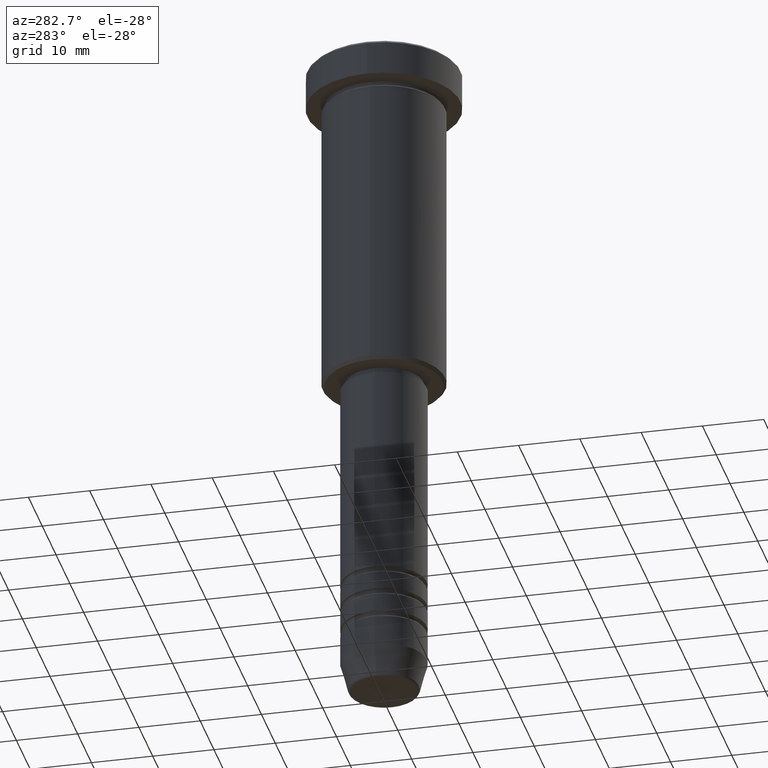
[diagram: clean part render]
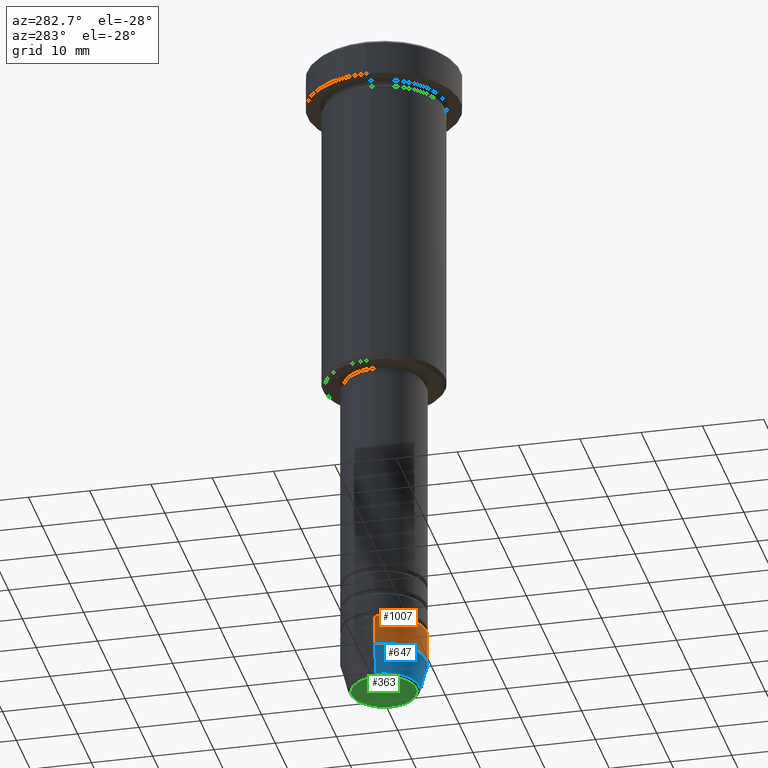
[diagram: same view with three faces highlighted in distinct colors, each labeled with its STEP entity id]
A machine part, auxiliary view with three faces highlighted in distinct colors.
Their STEP definitions:

[orange] entity #1007 — the highlighted cylindrical surface (partial cylindrical patch) has radius 7 mm, axis along (-0, -0, 1).
#11 = DIRECTION ( 'NONE',  ( 1.000000000000000000, 0.000000000000000000, 0.000000000000000000 ) ) ;
#18 = CARTESIAN_POINT ( 'NONE',  ( -7.000000000000000000, 8.572527594031473190E-16, -106.0000000000000142 ) ) ;
#23 = CYLINDRICAL_SURFACE ( 'NONE', #551, 7.000000000000000000 ) ;
#29 = VECTOR ( 'NONE', #713, 1000.000000000000000 ) ;
#76 = EDGE_CURVE ( 'NONE', #303, #154, #670, .T. ) ;
#98 = CARTESIAN_POINT ( 'NONE',  ( 0.000000000000000000, 0.000000000000000000, -101.0000000000000000 ) ) ;
#101 = VECTOR ( 'NONE', #1079, 1000.000000000000000 ) ;
#154 = VERTEX_POINT ( 'NONE', #1145 ) ;
#302 = DIRECTION ( 'NONE',  ( 1.000000000000000000, 0.000000000000000000, 0.000000000000000000 ) ) ;
#303 = VERTEX_POINT ( 'NONE', #470 ) ;
#350 = CARTESIAN_POINT ( 'NONE',  ( -7.000000000000000000, 8.572527594031473190E-16, 0.000000000000000000 ) ) ;
#378 = FACE_OUTER_BOUND ( 'NONE', #624, .T. ) ;
#380 = DIRECTION ( 'NONE',  ( 1.000000000000000000, 0.000000000000000000, 0.000000000000000000 ) ) ;
#399 = EDGE_CURVE ( 'NONE', #1071, #435, #520, .T. ) ;
#435 = VERTEX_POINT ( 'NONE', #503 ) ;
#443 = ORIENTED_EDGE ( 'NONE', *, *, #76, .F. ) ;
#470 = CARTESIAN_POINT ( 'NONE',  ( -7.000000000000000000, 8.572527594031473190E-16, -101.0000000000000000 ) ) ;
#494 = CARTESIAN_POINT ( 'NONE',  ( 0.000000000000000000, 0.000000000000000000, -106.0000000000000142 ) ) ;
#503 = CARTESIAN_POINT ( 'NONE',  ( 7.000000000000000000, 0.000000000000000000, -106.0000000000000142 ) ) ;
#520 = CIRCLE ( 'NONE', #825, 7.000000000000000000 ) ;
#551 = AXIS2_PLACEMENT_3D ( 'NONE', #751, #759, #302 ) ;
#624 = EDGE_LOOP ( 'NONE', ( #1078, #947, #1060, #443 ) ) ;
#670 = CIRCLE ( 'NONE', #1118, 7.000000000000000000 ) ;
#681 = DIRECTION ( 'NONE',  ( -0.000000000000000000, -0.000000000000000000, 1.000000000000000000 ) ) ;
#713 = DIRECTION ( 'NONE',  ( -0.000000000000000000, -0.000000000000000000, 1.000000000000000000 ) ) ;
#750 = EDGE_CURVE ( 'NONE', #1071, #303, #988, .T. ) ;
#751 = CARTESIAN_POINT ( 'NONE',  ( 0.000000000000000000, 0.000000000000000000, 0.000000000000000000 ) ) ;
#759 = DIRECTION ( 'NONE',  ( -0.000000000000000000, -0.000000000000000000, 1.000000000000000000 ) ) ;
#825 = AXIS2_PLACEMENT_3D ( 'NONE', #494, #681, #11 ) ;
#870 = CARTESIAN_POINT ( 'NONE',  ( 7.000000000000000000, 0.000000000000000000, 0.000000000000000000 ) ) ;
#947 = ORIENTED_EDGE ( 'NONE', *, *, #399, .T. ) ;
#988 = LINE ( 'NONE', #350, #101 ) ;
#1007 = ADVANCED_FACE ( 'NONE', ( #378 ), #23, .T. ) ;
#1011 = DIRECTION ( 'NONE',  ( -0.000000000000000000, -0.000000000000000000, 1.000000000000000000 ) ) ;
#1060 = ORIENTED_EDGE ( 'NONE', *, *, #1164, .T. ) ;
#1071 = VERTEX_POINT ( 'NONE', #18 ) ;
#1078 = ORIENTED_EDGE ( 'NONE', *, *, #750, .F. ) ;
#1079 = DIRECTION ( 'NONE',  ( -0.000000000000000000, -0.000000000000000000, 1.000000000000000000 ) ) ;
#1118 = AXIS2_PLACEMENT_3D ( 'NONE', #98, #1011, #380 ) ;
#1145 = CARTESIAN_POINT ( 'NONE',  ( 7.000000000000000000, 0.000000000000000000, -101.0000000000000000 ) ) ;
#1153 = LINE ( 'NONE', #870, #29 ) ;
#1164 = EDGE_CURVE ( 'NONE', #435, #154, #1153, .T. ) ;

[blue] entity #647 — the highlighted conical surface has half-angle 15 deg.
#11 = DIRECTION ( 'NONE',  ( 1.000000000000000000, 0.000000000000000000, 0.000000000000000000 ) ) ;
#18 = CARTESIAN_POINT ( 'NONE',  ( -7.000000000000000000, 8.572527594031473190E-16, -106.0000000000000142 ) ) ;
#19 = EDGE_CURVE ( 'NONE', #754, #435, #389, .T. ) ;
#26 = VECTOR ( 'NONE', #1017, 1000.000000000000000 ) ;
#63 = ORIENTED_EDGE ( 'NONE', *, *, #399, .F. ) ;
#123 = AXIS2_PLACEMENT_3D ( 'NONE', #890, #437, #235 ) ;
#164 = CARTESIAN_POINT ( 'NONE',  ( 5.759553456999433330, 0.000000000000000000, -110.6294095225512848 ) ) ;
#235 = DIRECTION ( 'NONE',  ( 1.000000000000000000, 0.000000000000000000, 0.000000000000000000 ) ) ;
#262 = CARTESIAN_POINT ( 'NONE',  ( 0.000000000000000000, 0.000000000000000000, -110.6294095225512848 ) ) ;
#318 = VECTOR ( 'NONE', #536, 1000.000000000000000 ) ;
#347 = CARTESIAN_POINT ( 'NONE',  ( -7.000000000000000000, 8.572527594031473190E-16, -106.0000000000000142 ) ) ;
#389 = LINE ( 'NONE', #760, #26 ) ;
#399 = EDGE_CURVE ( 'NONE', #1071, #435, #520, .T. ) ;
#426 = FACE_OUTER_BOUND ( 'NONE', #1003, .T. ) ;
#435 = VERTEX_POINT ( 'NONE', #503 ) ;
#437 = DIRECTION ( 'NONE',  ( -0.000000000000000000, -0.000000000000000000, 1.000000000000000000 ) ) ;
#454 = DIRECTION ( 'NONE',  ( -0.000000000000000000, -0.000000000000000000, 1.000000000000000000 ) ) ;
#494 = CARTESIAN_POINT ( 'NONE',  ( 0.000000000000000000, 0.000000000000000000, -106.0000000000000142 ) ) ;
#503 = CARTESIAN_POINT ( 'NONE',  ( 7.000000000000000000, 0.000000000000000000, -106.0000000000000142 ) ) ;
#520 = CIRCLE ( 'NONE', #825, 7.000000000000000000 ) ;
#536 = DIRECTION ( 'NONE',  ( -0.2588190451025213501, 3.169619151431772337E-17, 0.9659258262890680902 ) ) ;
#632 = CIRCLE ( 'NONE', #768, 5.759553456999433330 ) ;
#647 = ADVANCED_FACE ( 'NONE', ( #426 ), #1173, .T. ) ;
#681 = DIRECTION ( 'NONE',  ( -0.000000000000000000, -0.000000000000000000, 1.000000000000000000 ) ) ;
#704 = EDGE_CURVE ( 'NONE', #899, #754, #632, .T. ) ;
#708 = CARTESIAN_POINT ( 'NONE',  ( -5.759553456999433330, 7.812973149831950787E-16, -110.6294095225512848 ) ) ;
#725 = EDGE_CURVE ( 'NONE', #899, #1071, #903, .T. ) ;
#754 = VERTEX_POINT ( 'NONE', #164 ) ;
#760 = CARTESIAN_POINT ( 'NONE',  ( 7.000000000000000000, 0.000000000000000000, -106.0000000000000142 ) ) ;
#768 = AXIS2_PLACEMENT_3D ( 'NONE', #262, #454, #812 ) ;
#812 = DIRECTION ( 'NONE',  ( 1.000000000000000000, 0.000000000000000000, 0.000000000000000000 ) ) ;
#824 = ORIENTED_EDGE ( 'NONE', *, *, #725, .F. ) ;
#825 = AXIS2_PLACEMENT_3D ( 'NONE', #494, #681, #11 ) ;
#890 = CARTESIAN_POINT ( 'NONE',  ( 0.000000000000000000, 0.000000000000000000, -106.0000000000000142 ) ) ;
#899 = VERTEX_POINT ( 'NONE', #708 ) ;
#903 = LINE ( 'NONE', #347, #318 ) ;
#953 = ORIENTED_EDGE ( 'NONE', *, *, #19, .T. ) ;
#1003 = EDGE_LOOP ( 'NONE', ( #824, #1026, #953, #63 ) ) ;
#1017 = DIRECTION ( 'NONE',  ( 0.2588190451025213501, 0.000000000000000000, 0.9659258262890680902 ) ) ;
#1026 = ORIENTED_EDGE ( 'NONE', *, *, #704, .T. ) ;
#1071 = VERTEX_POINT ( 'NONE', #18 ) ;
#1173 = CONICAL_SURFACE ( 'NONE', #123, 7.000000000000000000, 0.2617993877991500740 ) ;

[green] entity #363 — the highlighted planar face has unit normal (0, -0, 1).
#109 = CARTESIAN_POINT ( 'NONE',  ( -5.276590543854901227, 6.757689212787763943E-16, -111.0000000000000142 ) ) ;
#117 = VERTEX_POINT ( 'NONE', #679 ) ;
#239 = CARTESIAN_POINT ( 'NONE',  ( 0.000000000000000000, 0.000000000000000000, -111.0000000000000142 ) ) ;
#268 = FACE_OUTER_BOUND ( 'NONE', #1074, .T. ) ;
#279 = EDGE_CURVE ( 'NONE', #117, #1030, #1085, .T. ) ;
#328 = CARTESIAN_POINT ( 'NONE',  ( 0.000000000000000000, 0.000000000000000000, -111.0000000000000142 ) ) ;
#363 = ADVANCED_FACE ( 'NONE', ( #268 ), #742, .F. ) ;
#542 = DIRECTION ( 'NONE',  ( 0.000000000000000000, -0.000000000000000000, 1.000000000000000000 ) ) ;
#643 = DIRECTION ( 'NONE',  ( 1.000000000000000000, 0.000000000000000000, 0.000000000000000000 ) ) ;
#665 = ORIENTED_EDGE ( 'NONE', *, *, #792, .T. ) ;
#679 = CARTESIAN_POINT ( 'NONE',  ( 5.276590543854901227, 0.000000000000000000, -111.0000000000000142 ) ) ;
#703 = DIRECTION ( 'NONE',  ( 0.000000000000000000, 0.000000000000000000, -1.000000000000000000 ) ) ;
#731 = CIRCLE ( 'NONE', #1080, 5.276590543854901227 ) ;
#742 = PLANE ( 'NONE',  #747 ) ;
#747 = AXIS2_PLACEMENT_3D ( 'NONE', #239, #542, #643 ) ;
#792 = EDGE_CURVE ( 'NONE', #1030, #117, #731, .T. ) ;
#836 = ORIENTED_EDGE ( 'NONE', *, *, #279, .T. ) ;
#944 = DIRECTION ( 'NONE',  ( 1.000000000000000000, 0.000000000000000000, 0.000000000000000000 ) ) ;
#1002 = AXIS2_PLACEMENT_3D ( 'NONE', #1182, #1081, #1059 ) ;
#1030 = VERTEX_POINT ( 'NONE', #109 ) ;
#1059 = DIRECTION ( 'NONE',  ( 1.000000000000000000, 0.000000000000000000, 0.000000000000000000 ) ) ;
#1074 = EDGE_LOOP ( 'NONE', ( #836, #665 ) ) ;
#1080 = AXIS2_PLACEMENT_3D ( 'NONE', #328, #703, #944 ) ;
#1081 = DIRECTION ( 'NONE',  ( 0.000000000000000000, 0.000000000000000000, -1.000000000000000000 ) ) ;
#1085 = CIRCLE ( 'NONE', #1002, 5.276590543854901227 ) ;
#1182 = CARTESIAN_POINT ( 'NONE',  ( 0.000000000000000000, 0.000000000000000000, -111.0000000000000142 ) ) ;